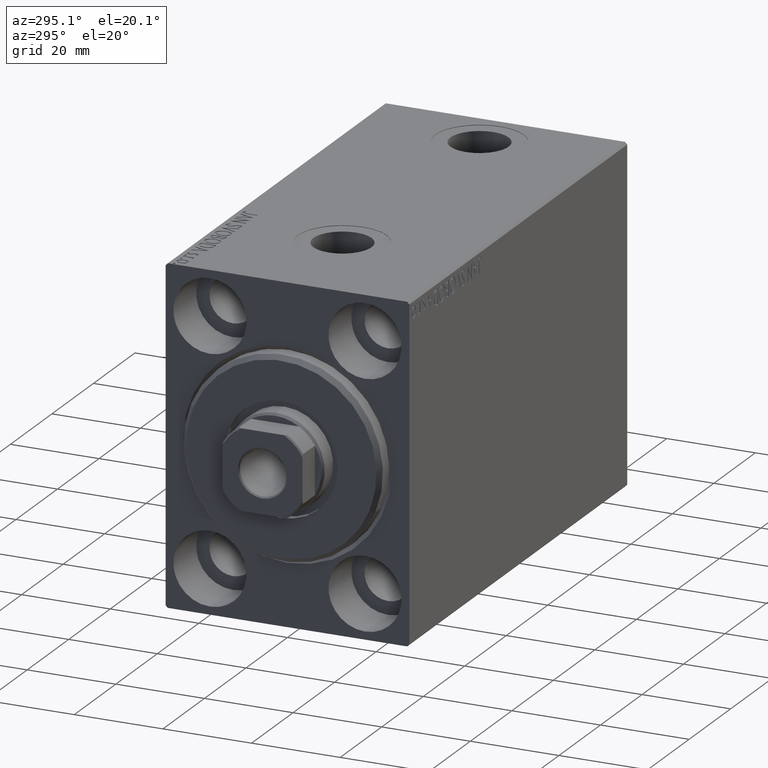
[diagram: clean part render]
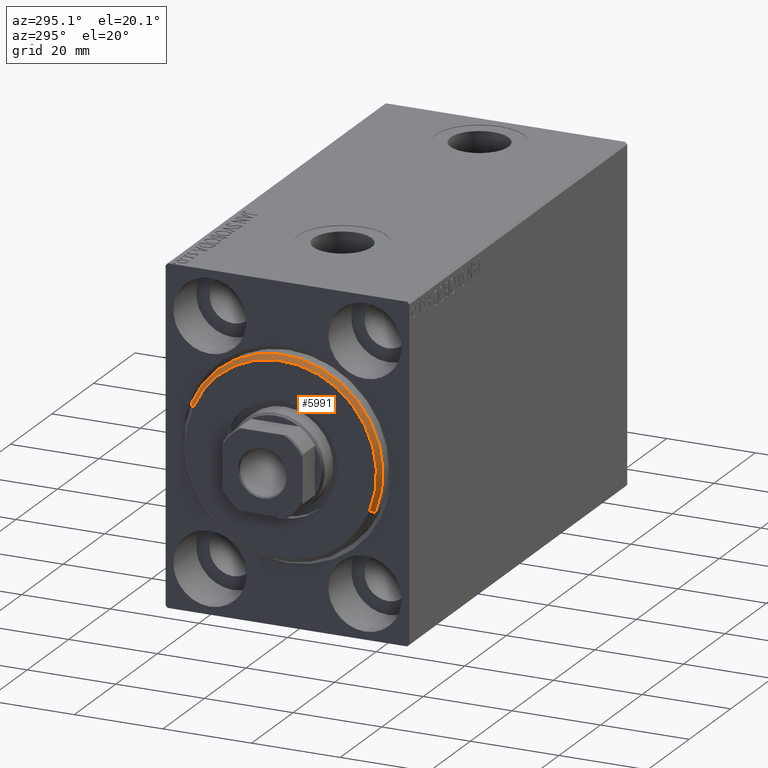
[diagram: same view with one face highlighted and labeled with its STEP entity id]
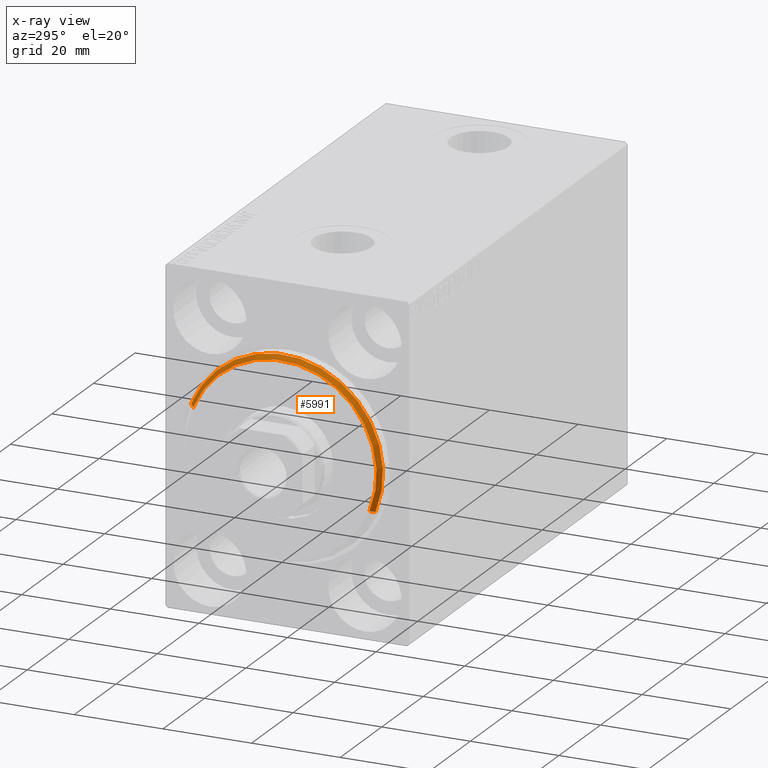
[diagram: x-ray of the same camera — body ghosted, the highlighted face saturated]
A machine part, auxiliary view. The second image highlights one B-rep face of the part: STEP entity #5991.
The next image is the same camera in x-ray: the body ghosted, the highlighted face saturated — about 0% of this face is hidden behind the body in this view.
In plain terms, the highlighted conical surface has half-angle 45 deg.
Its self-contained STEP definition (entity closure, byte-faithful):
#2088 = AXIS2_PLACEMENT_3D ( 'NONE', #30609, #37460, #21415 ) ;
#2140 = VERTEX_POINT ( 'NONE', #21301 ) ;
#5991 = ADVANCED_FACE ( 'NONE', ( #7841 ), #25508, .T. ) ;
#7346 = ORIENTED_EDGE ( 'NONE', *, *, #36721, .F. ) ;
#7841 = FACE_OUTER_BOUND ( 'NONE', #31213, .T. ) ;
#11492 = CARTESIAN_POINT ( 'NONE',  ( 1.999999999999999112, 0.000000000000000000, 0.000000000000000000 ) ) ;
#11672 = VERTEX_POINT ( 'NONE', #20950 ) ;
#11972 = LINE ( 'NONE', #25566, #23407 ) ;
#14181 = VECTOR ( 'NONE', #35001, 1000.000000000000000 ) ;
#15197 = ORIENTED_EDGE ( 'NONE', *, *, #41607, .F. ) ;
#19192 = ORIENTED_EDGE ( 'NONE', *, *, #39629, .T. ) ;
#19453 = VERTEX_POINT ( 'NONE', #31126 ) ;
#20950 = CARTESIAN_POINT ( 'NONE',  ( 1.999999999999999112, 0.000000000000000000, 22.50000000000000355 ) ) ;
#21301 = CARTESIAN_POINT ( 'NONE',  ( 3.000000000000000000, 0.000000000000000000, 21.50000000000000355 ) ) ;
#21415 = DIRECTION ( 'NONE',  ( 0.000000000000000000, 0.000000000000000000, -1.000000000000000000 ) ) ;
#21456 = CARTESIAN_POINT ( 'NONE',  ( 3.000000000000000000, 2.632990618166810024E-15, -21.50000000000000355 ) ) ;
#23407 = VECTOR ( 'NONE', #39116, 1000.000000000000000 ) ;
#24767 = CARTESIAN_POINT ( 'NONE',  ( 3.000000000000000000, 0.000000000000000000, 0.000000000000000000 ) ) ;
#25082 = DIRECTION ( 'NONE',  ( -1.000000000000000000, 0.000000000000000000, 0.000000000000000000 ) ) ;
#25508 = CONICAL_SURFACE ( 'NONE', #43989, 21.50000000000000355, 0.7853981633974466137 ) ;
#25566 = CARTESIAN_POINT ( 'NONE',  ( 3.000000000000000000, 0.000000000000000000, 21.50000000000000355 ) ) ;
#27734 = CIRCLE ( 'NONE', #39056, 22.50000000000000355 ) ;
#30609 = CARTESIAN_POINT ( 'NONE',  ( 3.000000000000000000, 0.000000000000000000, 0.000000000000000000 ) ) ;
#30802 = CARTESIAN_POINT ( 'NONE',  ( 1.999999999999999112, 2.755455298081545172E-15, -22.50000000000000355 ) ) ;
#31126 = CARTESIAN_POINT ( 'NONE',  ( 3.000000000000000000, 2.694222958124177598E-15, -21.50000000000000355 ) ) ;
#31213 = EDGE_LOOP ( 'NONE', ( #36075, #7346, #19192, #15197 ) ) ;
#31673 = LINE ( 'NONE', #21456, #14181 ) ;
#34713 = VERTEX_POINT ( 'NONE', #30802 ) ;
#35001 = DIRECTION ( 'NONE',  ( -0.7071067811865487940, 8.659560562354919300E-17, -0.7071067811865463515 ) ) ;
#35622 = EDGE_CURVE ( 'NONE', #19453, #34713, #31673, .T. ) ;
#36075 = ORIENTED_EDGE ( 'NONE', *, *, #35622, .F. ) ;
#36721 = EDGE_CURVE ( 'NONE', #2140, #19453, #41207, .T. ) ;
#37460 = DIRECTION ( 'NONE',  ( 1.000000000000000000, -0.000000000000000000, 0.000000000000000000 ) ) ;
#39056 = AXIS2_PLACEMENT_3D ( 'NONE', #11492, #25082, #42173 ) ;
#39116 = DIRECTION ( 'NONE',  ( -0.7071067811865487940, 0.000000000000000000, 0.7071067811865463515 ) ) ;
#39629 = EDGE_CURVE ( 'NONE', #2140, #11672, #11972, .T. ) ;
#41207 = CIRCLE ( 'NONE', #2088, 21.50000000000000355 ) ;
#41435 = DIRECTION ( 'NONE',  ( 0.000000000000000000, 0.000000000000000000, 1.000000000000000000 ) ) ;
#41607 = EDGE_CURVE ( 'NONE', #34713, #11672, #27734, .T. ) ;
#41648 = DIRECTION ( 'NONE',  ( -1.000000000000000000, 0.000000000000000000, 0.000000000000000000 ) ) ;
#42173 = DIRECTION ( 'NONE',  ( 0.000000000000000000, 0.000000000000000000, -1.000000000000000000 ) ) ;
#43989 = AXIS2_PLACEMENT_3D ( 'NONE', #24767, #41648, #41435 ) ;